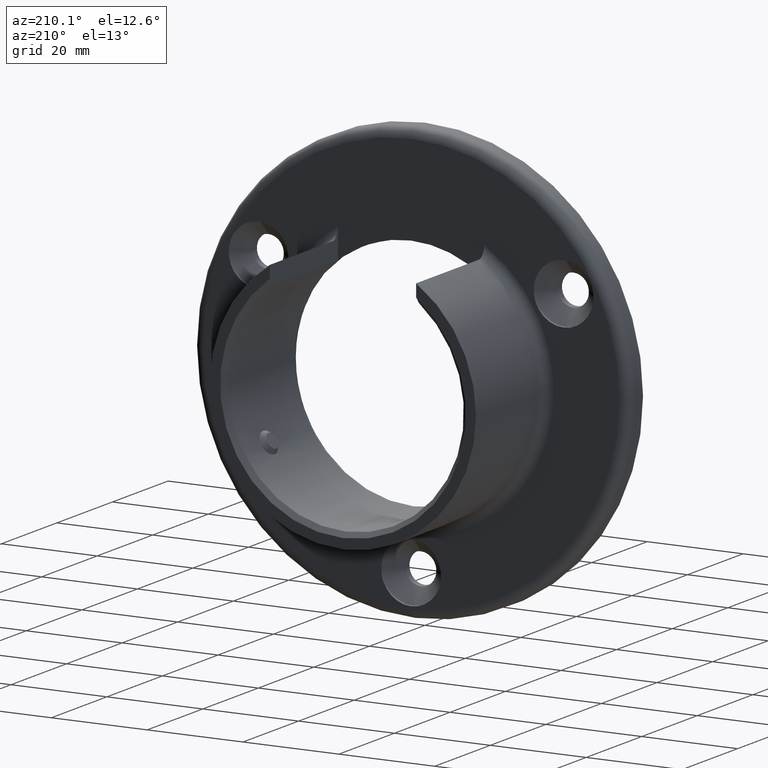
[diagram: clean part render]
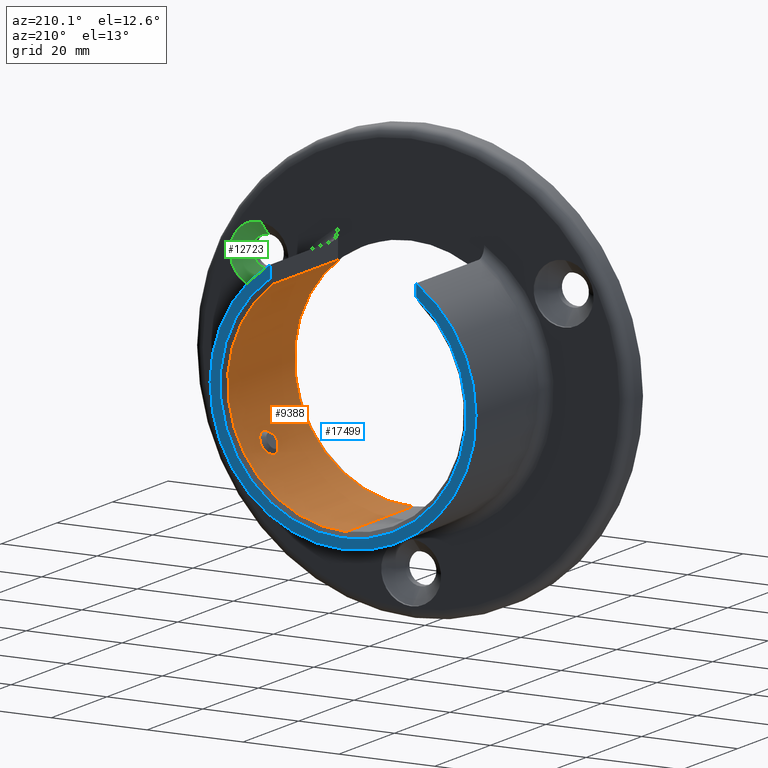
[diagram: same view with three faces highlighted in distinct colors, each labeled with its STEP entity id]
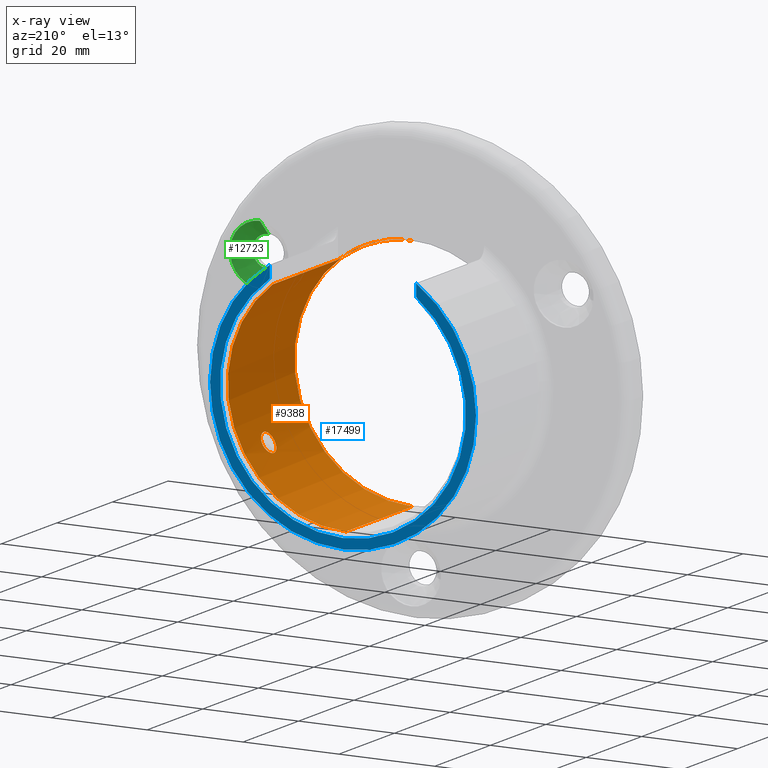
[diagram: x-ray of the same camera — body ghosted, the three highlighted faces saturated]
A machine part, auxiliary view with three faces highlighted in distinct colors.
The next image is the same camera in x-ray (body ghosted, the three faces saturated) — at least one of them is partly hidden behind the body in this view.
Their STEP definitions:

[orange] entity #9388 — the highlighted cylindrical surface (partial cylindrical patch) has radius 24.65 mm, axis along (-0, -1, -0).
#249 = CARTESIAN_POINT ( 'NONE',  ( 15.25000000000000000, 28.50000000000002132, 19.36646586241278811 ) ) ;
#305 = B_SPLINE_CURVE_WITH_KNOTS ( 'NONE', 3,
 ( #19015, #20566, #14099, #5966, #20361, #1100, #4426, #15858, #14024, #2940, #1236, #12524, #17261, #9369, #10988, #15717, #14171, #4494, #1311, #7595, #12598, #10707, #9086, #18878, #1027, #14241, #9220, #6189 ),
 .UNSPECIFIED., .F., .F.,
 ( 4, 2, 2, 2, 2, 2, 2, 2, 2, 2, 2, 2, 2, 4 ),
 ( 0.006568531889358348967, 0.007389407767020031437, 0.008210283644681713039, 0.008620721583512552105, 0.009031159522343391172, 0.009441597461174230238, 0.009852035400005069304, 0.01026247333883590837, 0.01067291127766674744, 0.01108334921649758650, 0.01149378715532842557, 0.01190422509415926464, 0.01231466303299010370, 0.01313553891065178357 ),
 .UNSPECIFIED. ) ;
#429 = EDGE_LOOP ( 'NONE', ( #9293, #4828, #2993, #1918, #11152, #5960 ) ) ;
#464 = CARTESIAN_POINT ( 'NONE',  ( 3.018754359898225504E-15, 4.500000000000000888, 24.64999999999999858 ) ) ;
#474 = VERTEX_POINT ( 'NONE', #2409 ) ;
#570 = CARTESIAN_POINT ( 'NONE',  ( 22.13340614786595495, 18.21893251904027622, -10.85083604497677001 ) ) ;
#645 = CARTESIAN_POINT ( 'NONE',  ( 20.51296449684338086, 18.11160774672137208, -13.66931605278213269 ) ) ;
#707 = LINE ( 'NONE', #16797, #14112 ) ;
#1027 = CARTESIAN_POINT ( 'NONE',  ( 20.34158313223149861, 20.43216388753052115, -13.92283256409887926 ) ) ;
#1100 = CARTESIAN_POINT ( 'NONE',  ( 22.00837622095577828, 21.08075349679692323, -11.10239910529575447 ) ) ;
#1236 = CARTESIAN_POINT ( 'NONE',  ( 21.61518600170494508, 21.53262555859764760, -11.85007396796444290 ) ) ;
#1311 = CARTESIAN_POINT ( 'NONE',  ( 20.80302953202311400, 21.32344101146760451, -13.22382369981001204 ) ) ;
#1439 = CARTESIAN_POINT ( 'NONE',  ( 0.000000000000000000, 4.500000000000000888, 0.000000000000000000 ) ) ;
#1474 = ORIENTED_EDGE ( 'NONE', *, *, #3500, .F. ) ;
#1635 = VERTEX_POINT ( 'NONE', #6670 ) ;
#1918 = ORIENTED_EDGE ( 'NONE', *, *, #5040, .T. ) ;
#2136 = CARTESIAN_POINT ( 'NONE',  ( 21.85479066950291838, 17.67796752368202107, -11.40191179354865270 ) ) ;
#2203 = CARTESIAN_POINT ( 'NONE',  ( 22.22862259660871587, 18.56911766311585055, -10.65427760651781952 ) ) ;
#2227 = EDGE_CURVE ( 'NONE', #474, #2477, #15534, .T. ) ;
#2273 = CARTESIAN_POINT ( 'NONE',  ( 21.67769443879006985, 17.50695895320578188, -11.73525681422987077 ) ) ;
#2409 = CARTESIAN_POINT ( 'NONE',  ( 20.21991713665093826, 19.50000000000000000, -14.09884573243390093 ) ) ;
#2477 = VERTEX_POINT ( 'NONE', #15254 ) ;
#2623 = DIRECTION ( 'NONE',  ( 0.000000000000000000, 0.000000000000000000, 1.000000000000000000 ) ) ;
#2856 = DIRECTION ( 'NONE',  ( -0.000000000000000000, -1.000000000000000000, -0.000000000000000000 ) ) ;
#2940 = CARTESIAN_POINT ( 'NONE',  ( 21.67901420820233938, 21.49209272442217866, -11.73281694519427987 ) ) ;
#2993 = ORIENTED_EDGE ( 'NONE', *, *, #9080, .T. ) ;
#3008 = CARTESIAN_POINT ( 'NONE',  ( 0.000000000000000000, 28.50000000000001776, 0.000000000000000000 ) ) ;
#3044 = DIRECTION ( 'NONE',  ( 0.000000000000000000, 0.000000000000000000, -1.000000000000000000 ) ) ;
#3115 = VERTEX_POINT ( 'NONE', #464 ) ;
#3500 = EDGE_CURVE ( 'NONE', #2477, #474, #305, .T. ) ;
#3694 = CARTESIAN_POINT ( 'NONE',  ( 21.61506682271525648, 17.46727435266398132, -11.85029680345877878 ) ) ;
#3766 = CARTESIAN_POINT ( 'NONE',  ( 21.21010183992854792, 17.40009892714541451, -12.56300912379390411 ) ) ;
#4307 = EDGE_CURVE ( 'NONE', #1635, #20028, #5138, .T. ) ;
#4426 = CARTESIAN_POINT ( 'NONE',  ( 21.95955195638258672, 21.16945329795520792, -11.19882234432368584 ) ) ;
#4494 = CARTESIAN_POINT ( 'NONE',  ( 20.86760422146044647, 21.38786518555536631, -13.12180643169930505 ) ) ;
#4508 = CYLINDRICAL_SURFACE ( 'NONE', #12979, 24.64999999999999858 ) ;
#4828 = ORIENTED_EDGE ( 'NONE', *, *, #13158, .T. ) ;
#5040 = EDGE_CURVE ( 'NONE', #12698, #1635, #14726, .T. ) ;
#5138 = LINE ( 'NONE', #15881, #12425 ) ;
#5370 = CARTESIAN_POINT ( 'NONE',  ( 20.28143401689244030, 18.82277780301813053, -14.01030804463471569 ) ) ;
#5460 = CARTESIAN_POINT ( 'NONE',  ( 21.06765711238190164, 17.45527740111259973, -12.80000981060015341 ) ) ;
#5529 = CARTESIAN_POINT ( 'NONE',  ( 21.48425335259662461, 17.41362232631799500, -12.08583906735283264 ) ) ;
#5960 = ORIENTED_EDGE ( 'NONE', *, *, #15719, .T. ) ;
#5966 = CARTESIAN_POINT ( 'NONE',  ( 22.20630086078287491, 20.55591280023837797, -10.70110809995931156 ) ) ;
#6189 = CARTESIAN_POINT ( 'NONE',  ( 20.21991713665093826, 19.50000000000000000, -14.09884573243390093 ) ) ;
#6215 = DIRECTION ( 'NONE',  ( -0.000000000000000000, -1.000000000000000000, -0.000000000000000000 ) ) ;
#6624 = CARTESIAN_POINT ( 'NONE',  ( 0.000000000000000000, 4.500000000000000888, -24.64999999999999858 ) ) ;
#6670 = CARTESIAN_POINT ( 'NONE',  ( 0.000000000000000000, 28.50000000000001776, -24.64999999999999858 ) ) ;
#6772 = EDGE_LOOP ( 'NONE', ( #13815, #1474 ) ) ;
#6878 = DIRECTION ( 'NONE',  ( -0.000000000000000000, 1.000000000000000000, -0.000000000000000000 ) ) ;
#6927 = AXIS2_PLACEMENT_3D ( 'NONE', #17018, #18644, #2623 ) ;
#6977 = CARTESIAN_POINT ( 'NONE',  ( 20.37789867389697562, 18.44786825748163395, -13.86973623558677104 ) ) ;
#7074 = CARTESIAN_POINT ( 'NONE',  ( 22.31407426790390147, 19.22366995173492299, -10.47403055838502794 ) ) ;
#7595 = CARTESIAN_POINT ( 'NONE',  ( 20.67956654524506632, 21.17130988912107625, -13.41607537451484511 ) ) ;
#8018 = DIRECTION ( 'NONE',  ( 0.000000000000000000, -1.000000000000000000, 0.000000000000000000 ) ) ;
#8106 = AXIS2_PLACEMENT_3D ( 'NONE', #3008, #18664, #14307 ) ;
#8698 = CARTESIAN_POINT ( 'NONE',  ( 22.31991713665094679, 19.36291245680589057, -10.46153903653928907 ) ) ;
#8854 = CARTESIAN_POINT ( 'NONE',  ( 3.018754359898225110E-15, 5.000000000000000888, 24.64999999999999503 ) ) ;
#9080 = EDGE_CURVE ( 'NONE', #18939, #12698, #707, .T. ) ;
#9086 = CARTESIAN_POINT ( 'NONE',  ( 20.46484218839484015, 20.78360855170165067, -13.74113026791213343 ) ) ;
#9220 = CARTESIAN_POINT ( 'NONE',  ( 20.21991713665094537, 19.77757476843959239, -14.09884573243390449 ) ) ;
#9293 = ORIENTED_EDGE ( 'NONE', *, *, #15772, .F. ) ;
#9369 = CARTESIAN_POINT ( 'NONE',  ( 21.27903636249266128, 21.60010863259131852, -12.44364639345839407 ) ) ;
#9388 = ADVANCED_FACE ( 'NONE', ( #12072, #18889 ), #4508, .F. ) ;
#9638 = CARTESIAN_POINT ( 'NONE',  ( 3.018754359898225504E-15, 5.000000000000000000, 24.64999999999999858 ) ) ;
#10161 = CARTESIAN_POINT ( 'NONE',  ( 20.21991713665093826, 19.50000000000000000, -14.09884573243390093 ) ) ;
#10319 = CARTESIAN_POINT ( 'NONE',  ( 20.46348655821620710, 18.21962344048476368, -13.74314576398233712 ) ) ;
#10707 = CARTESIAN_POINT ( 'NONE',  ( 20.51335410552706406, 20.88919125410771827, -13.66873177343665624 ) ) ;
#10988 = CARTESIAN_POINT ( 'NONE',  ( 21.20963398433370273, 21.58656786249065718, -12.56152648233364388 ) ) ;
#11152 = ORIENTED_EDGE ( 'NONE', *, *, #4307, .T. ) ;
#11371 = CARTESIAN_POINT ( 'NONE',  ( 0.000000000000000000, 5.000000000000000000, 0.000000000000000000 ) ) ;
#11869 = CARTESIAN_POINT ( 'NONE',  ( 22.00719563030491344, 17.91678819717421334, -11.10475081294173805 ) ) ;
#11936 = CARTESIAN_POINT ( 'NONE',  ( 21.41567066343079162, 17.39995074105626927, -12.20697872577965626 ) ) ;
#12072 = FACE_OUTER_BOUND ( 'NONE', #429, .T. ) ;
#12425 = VECTOR ( 'NONE', #6215, 1000.000000000000000 ) ;
#12524 = CARTESIAN_POINT ( 'NONE',  ( 21.48484579012615114, 21.58618562018502729, -12.08478052382533718 ) ) ;
#12598 = CARTESIAN_POINT ( 'NONE',  ( 20.62038264445520497, 21.08273272043192392, -13.50672960228164499 ) ) ;
#12698 = VERTEX_POINT ( 'NONE', #249 ) ;
#12979 = AXIS2_PLACEMENT_3D ( 'NONE', #11371, #16091, #3044 ) ;
#13158 = EDGE_CURVE ( 'NONE', #17465, #18939, #18575, .T. ) ;
#13360 = CARTESIAN_POINT ( 'NONE',  ( 22.27410988502726141, 18.82352602397247310, -10.55885044353509450 ) ) ;
#13399 = CARTESIAN_POINT ( 'NONE',  ( 20.21991713665094181, 19.36118038915865114, -14.09884573243390271 ) ) ;
#13563 = CARTESIAN_POINT ( 'NONE',  ( 21.79768277426660816, 17.61220771027227272, -11.51085202536802932 ) ) ;
#13815 = ORIENTED_EDGE ( 'NONE', *, *, #2227, .F. ) ;
#14024 = CARTESIAN_POINT ( 'NONE',  ( 21.79883715100291752, 21.38656602874010915, -11.50866410027384212 ) ) ;
#14099 = CARTESIAN_POINT ( 'NONE',  ( 22.29660817033180109, 20.05045571550364869, -10.51164956537813211 ) ) ;
#14112 = VECTOR ( 'NONE', #6878, 1000.000000000000000 ) ;
#14171 = CARTESIAN_POINT ( 'NONE',  ( 21.00203671826469076, 21.49314951443726329, -12.90554778609420516 ) ) ;
#14241 = CARTESIAN_POINT ( 'NONE',  ( 20.25210933246012956, 20.05334134766032150, -14.05295881014923509 ) ) ;
#14307 = DIRECTION ( 'NONE',  ( 0.000000000000000000, 0.000000000000000000, 1.000000000000000000 ) ) ;
#14726 = CIRCLE ( 'NONE', #8106, 24.64999999999999858 ) ;
#14932 = CARTESIAN_POINT ( 'NONE',  ( 22.31991713665094679, 19.50000000000000355, -10.46153903653928730 ) ) ;
#15041 = CARTESIAN_POINT ( 'NONE',  ( 20.22775040098064991, 19.22469344419998905, -14.08763043844692397 ) ) ;
#15067 = CARTESIAN_POINT ( 'NONE',  ( 20.67341977048848278, 17.82117154752544153, -13.42646156630977394 ) ) ;
#15068 = AXIS2_PLACEMENT_3D ( 'NONE', #1439, #8018, #20629 ) ;
#15136 = CARTESIAN_POINT ( 'NONE',  ( 22.20009201370539387, 18.44633511682691562, -10.71374001758355554 ) ) ;
#15254 = CARTESIAN_POINT ( 'NONE',  ( 22.31991713665094679, 19.50000000000000355, -10.46153903653928730 ) ) ;
#15534 = B_SPLINE_CURVE_WITH_KNOTS ( 'NONE', 3,
 ( #10161, #13399, #15041, #19880, #5370, #16632, #6977, #10319, #645, #15067, #19840, #5460, #3766, #11936, #5529, #3694, #2273, #13563, #2136, #16728, #11869, #18220, #570, #15136, #2203, #13360, #19904, #7074, #8698, #14932 ),
 .UNSPECIFIED., .F., .F.,
 ( 4, 2, 2, 2, 2, 2, 2, 2, 2, 2, 2, 2, 2, 2, 4 ),
 ( 3.469446951953613804E-18, 0.0004105332430848995210, 0.0008210664861697955725, 0.001231599729254691678, 0.001642132972339587675, 0.002463199458509384224, 0.003284265944679180555, 0.003694799187764076336, 0.004105332430848972550, 0.004515865673933868764, 0.004926398917018764978, 0.005336932160103660325, 0.005747465403188556539, 0.006157998646273452753, 0.006568531889358348967 ),
 .UNSPECIFIED. ) ;
#15717 = CARTESIAN_POINT ( 'NONE',  ( 21.07156024452329035, 21.53339744273441880, -12.79178917029193840 ) ) ;
#15719 = EDGE_CURVE ( 'NONE', #20028, #3115, #17718, .T. ) ;
#15759 = CARTESIAN_POINT ( 'NONE',  ( 15.25000000000000000, 5.000000000000000888, 19.36646586241278811 ) ) ;
#15772 = EDGE_CURVE ( 'NONE', #17465, #3115, #19221, .T. ) ;
#15858 = CARTESIAN_POINT ( 'NONE',  ( 21.85483673913577007, 21.32200853937143137, -11.40182683303474676 ) ) ;
#15881 = CARTESIAN_POINT ( 'NONE',  ( 0.000000000000000000, 5.000000000000000000, -24.64999999999999858 ) ) ;
#16091 = DIRECTION ( 'NONE',  ( -0.000000000000000000, -1.000000000000000000, -0.000000000000000000 ) ) ;
#16632 = CARTESIAN_POINT ( 'NONE',  ( 20.34136843017224550, 18.56847167351025263, -13.92314719002532541 ) ) ;
#16728 = CARTESIAN_POINT ( 'NONE',  ( 21.95920283929573813, 17.82999507104571535, -11.19950348981246968 ) ) ;
#16797 = CARTESIAN_POINT ( 'NONE',  ( 15.25000000000000000, -26.63121313886159314, 19.36646586241278811 ) ) ;
#17018 = CARTESIAN_POINT ( 'NONE',  ( 0.000000000000000000, 5.000000000000000888, 0.000000000000000000 ) ) ;
#17200 = VECTOR ( 'NONE', #2856, 1000.000000000000000 ) ;
#17261 = CARTESIAN_POINT ( 'NONE',  ( 21.41767117109146668, 21.59989006275890233, -12.20348662017181063 ) ) ;
#17465 = VERTEX_POINT ( 'NONE', #8854 ) ;
#17718 = CIRCLE ( 'NONE', #15068, 24.64999999999999858 ) ;
#18220 = CARTESIAN_POINT ( 'NONE',  ( 22.09500441125792136, 18.11283140243581258, -10.92899493066652816 ) ) ;
#18575 = CIRCLE ( 'NONE', #6927, 24.64999999999999503 ) ;
#18644 = DIRECTION ( 'NONE',  ( 0.000000000000000000, 1.000000000000000000, 0.000000000000000000 ) ) ;
#18664 = DIRECTION ( 'NONE',  ( 0.000000000000000000, 1.000000000000000000, 0.000000000000000000 ) ) ;
#18878 = CARTESIAN_POINT ( 'NONE',  ( 20.37861224256120707, 20.55440877027018232, -13.86869099457373267 ) ) ;
#18889 = FACE_BOUND ( 'NONE', #6772, .T. ) ;
#18939 = VERTEX_POINT ( 'NONE', #15759 ) ;
#19015 = CARTESIAN_POINT ( 'NONE',  ( 22.31991713665094679, 19.50000000000000355, -10.46153903653928730 ) ) ;
#19221 = LINE ( 'NONE', #9638, #17200 ) ;
#19840 = CARTESIAN_POINT ( 'NONE',  ( 20.80066910218234355, 17.66473845251893593, -13.22945925795429112 ) ) ;
#19880 = CARTESIAN_POINT ( 'NONE',  ( 20.25832283593280181, 18.95619021511917168, -14.04363106642126091 ) ) ;
#19904 = CARTESIAN_POINT ( 'NONE',  ( 22.29111404275122510, 18.95444850836133099, -10.52280672181018062 ) ) ;
#20028 = VERTEX_POINT ( 'NONE', #6624 ) ;
#20361 = CARTESIAN_POINT ( 'NONE',  ( 22.13828680825659134, 20.79017708333638126, -10.84233906041442985 ) ) ;
#20566 = CARTESIAN_POINT ( 'NONE',  ( 22.31991713665095389, 19.77411143733536392, -10.46153903653928907 ) ) ;
#20629 = DIRECTION ( 'NONE',  ( 0.000000000000000000, 0.000000000000000000, 1.000000000000000000 ) ) ;

[blue] entity #17499 — the highlighted planar face has unit normal (0, 1, 0).
#827 = CARTESIAN_POINT ( 'NONE',  ( 15.25000000000000000, 29.50000000000000355, 19.36646586241278811 ) ) ;
#844 = VERTEX_POINT ( 'NONE', #12079 ) ;
#891 = EDGE_CURVE ( 'NONE', #844, #3633, #1477, .T. ) ;
#960 = DIRECTION ( 'NONE',  ( -0.000000000000000000, -0.000000000000000000, -1.000000000000000000 ) ) ;
#1239 = EDGE_CURVE ( 'NONE', #10818, #7359, #11593, .T. ) ;
#1426 = LINE ( 'NONE', #1948, #18096 ) ;
#1477 = CIRCLE ( 'NONE', #13440, 27.75000000000000000 ) ;
#1815 = AXIS2_PLACEMENT_3D ( 'NONE', #18919, #12645, #14358 ) ;
#1948 = CARTESIAN_POINT ( 'NONE',  ( -15.25000000000000000, 29.50000000000000355, 19.36646586241278811 ) ) ;
#2052 = ORIENTED_EDGE ( 'NONE', *, *, #891, .T. ) ;
#2438 = AXIS2_PLACEMENT_3D ( 'NONE', #16276, #17910, #19791 ) ;
#3633 = VERTEX_POINT ( 'NONE', #14384 ) ;
#3931 = EDGE_LOOP ( 'NONE', ( #7411, #4816, #16973, #2052, #10461 ) ) ;
#4816 = ORIENTED_EDGE ( 'NONE', *, *, #1239, .T. ) ;
#5541 = LINE ( 'NONE', #827, #16387 ) ;
#7359 = VERTEX_POINT ( 'NONE', #17188 ) ;
#7411 = ORIENTED_EDGE ( 'NONE', *, *, #11680, .F. ) ;
#8044 = CIRCLE ( 'NONE', #2438, 27.75000000000000000 ) ;
#8308 = EDGE_CURVE ( 'NONE', #844, #7359, #5541, .T. ) ;
#8549 = VERTEX_POINT ( 'NONE', #9935 ) ;
#9917 = EDGE_CURVE ( 'NONE', #3633, #8549, #8044, .T. ) ;
#9935 = CARTESIAN_POINT ( 'NONE',  ( -15.25000000000000000, 29.50000000000000355, 23.18404623873926340 ) ) ;
#10461 = ORIENTED_EDGE ( 'NONE', *, *, #9917, .T. ) ;
#10502 = CARTESIAN_POINT ( 'NONE',  ( 0.000000000000000000, 29.50000000000000355, 0.000000000000000000 ) ) ;
#10818 = VERTEX_POINT ( 'NONE', #20818 ) ;
#11593 = CIRCLE ( 'NONE', #17900, 25.64999999999997726 ) ;
#11680 = EDGE_CURVE ( 'NONE', #10818, #8549, #1426, .T. ) ;
#12079 = CARTESIAN_POINT ( 'NONE',  ( 15.25000000000000000, 29.50000000000000355, 23.18404623873925985 ) ) ;
#12645 = DIRECTION ( 'NONE',  ( 0.000000000000000000, 1.000000000000000000, 0.000000000000000000 ) ) ;
#13440 = AXIS2_PLACEMENT_3D ( 'NONE', #15614, #20253, #17764 ) ;
#13750 = DIRECTION ( 'NONE',  ( -0.000000000000000000, -1.000000000000000000, -0.000000000000000000 ) ) ;
#14358 = DIRECTION ( 'NONE',  ( 0.000000000000000000, -0.000000000000000000, 1.000000000000000000 ) ) ;
#14384 = CARTESIAN_POINT ( 'NONE',  ( 0.000000000000000000, 29.50000000000000355, -27.75000000000000000 ) ) ;
#14884 = DIRECTION ( 'NONE',  ( 0.000000000000000000, 0.000000000000000000, 1.000000000000000000 ) ) ;
#15614 = CARTESIAN_POINT ( 'NONE',  ( 0.000000000000000000, 29.50000000000000355, 0.000000000000000000 ) ) ;
#16276 = CARTESIAN_POINT ( 'NONE',  ( 0.000000000000000000, 29.50000000000000355, 0.000000000000000000 ) ) ;
#16387 = VECTOR ( 'NONE', #960, 1000.000000000000000 ) ;
#16909 = FACE_OUTER_BOUND ( 'NONE', #3931, .T. ) ;
#16973 = ORIENTED_EDGE ( 'NONE', *, *, #8308, .F. ) ;
#16989 = DIRECTION ( 'NONE',  ( 0.000000000000000000, 0.000000000000000000, 1.000000000000000000 ) ) ;
#17188 = CARTESIAN_POINT ( 'NONE',  ( 15.25000000000000000, 29.50000000000000355, 20.62425756239479568 ) ) ;
#17499 = ADVANCED_FACE ( 'NONE', ( #16909 ), #20543, .T. ) ;
#17764 = DIRECTION ( 'NONE',  ( 0.000000000000000000, 0.000000000000000000, 1.000000000000000000 ) ) ;
#17900 = AXIS2_PLACEMENT_3D ( 'NONE', #10502, #13750, #16989 ) ;
#17910 = DIRECTION ( 'NONE',  ( 0.000000000000000000, 1.000000000000000000, 0.000000000000000000 ) ) ;
#18096 = VECTOR ( 'NONE', #14884, 1000.000000000000000 ) ;
#18919 = CARTESIAN_POINT ( 'NONE',  ( 0.000000000000000000, 29.50000000000000355, 0.000000000000000000 ) ) ;
#19791 = DIRECTION ( 'NONE',  ( 0.000000000000000000, 0.000000000000000000, 1.000000000000000000 ) ) ;
#20253 = DIRECTION ( 'NONE',  ( 0.000000000000000000, 1.000000000000000000, 0.000000000000000000 ) ) ;
#20543 = PLANE ( 'NONE',  #1815 ) ;
#20818 = CARTESIAN_POINT ( 'NONE',  ( -15.25000000000000000, 29.50000000000000355, 20.62425756239479568 ) ) ;

[green] entity #12723 — the highlighted conical surface has half-angle 45 deg.
#512 = LINE ( 'NONE', #14330, #11387 ) ;
#720 = DIRECTION ( 'NONE',  ( -0.000000000000000000, 1.000000000000000000, -0.000000000000000000 ) ) ;
#852 = EDGE_CURVE ( 'NONE', #11307, #5499, #11613, .T. ) ;
#1107 = CARTESIAN_POINT ( 'NONE',  ( 31.82643358907828812, 1.500000000000000444, 21.62499999999970868 ) ) ;
#1809 = ORIENTED_EDGE ( 'NONE', *, *, #18020, .T. ) ;
#2297 = VERTEX_POINT ( 'NONE', #1107 ) ;
#3840 = DIRECTION ( 'NONE',  ( -0.000000000000000000, 1.000000000000000000, -0.000000000000000000 ) ) ;
#4941 = ORIENTED_EDGE ( 'NONE', *, *, #6443, .F. ) ;
#5499 = VERTEX_POINT ( 'NONE', #12966 ) ;
#6443 = EDGE_CURVE ( 'NONE', #18226, #5499, #512, .T. ) ;
#7183 = CARTESIAN_POINT ( 'NONE',  ( 31.82643358907828812, 4.500000000000000000, 24.62499999999970157 ) ) ;
#8569 = DIRECTION ( 'NONE',  ( 0.000000000000000000, 0.000000000000000000, 1.000000000000000000 ) ) ;
#8581 = AXIS2_PLACEMENT_3D ( 'NONE', #19915, #720, #8569 ) ;
#8894 = ORIENTED_EDGE ( 'NONE', *, *, #852, .T. ) ;
#9334 = LINE ( 'NONE', #11083, #12356 ) ;
#10255 = DIRECTION ( 'NONE',  ( 0.000000000000000000, 0.000000000000000000, 1.000000000000000000 ) ) ;
#11026 = EDGE_LOOP ( 'NONE', ( #4941, #15320, #1809, #8894 ) ) ;
#11083 = CARTESIAN_POINT ( 'NONE',  ( 31.82643358907828812, 4.500000000000000000, 24.62499999999970157 ) ) ;
#11307 = VERTEX_POINT ( 'NONE', #7183 ) ;
#11387 = VECTOR ( 'NONE', #12687, 1000.000000000000000 ) ;
#11613 = CIRCLE ( 'NONE', #16409, 6.249999999999998224 ) ;
#12356 = VECTOR ( 'NONE', #19181, 1000.000000000000000 ) ;
#12687 = DIRECTION ( 'NONE',  ( 8.659560562354927928E-17, 0.7071067811865479058, -0.7071067811865471286 ) ) ;
#12723 = ADVANCED_FACE ( 'NONE', ( #12786 ), #18596, .F. ) ;
#12724 = AXIS2_PLACEMENT_3D ( 'NONE', #17536, #14076, #16791 ) ;
#12786 = FACE_OUTER_BOUND ( 'NONE', #11026, .T. ) ;
#12849 = CIRCLE ( 'NONE', #8581, 3.250000000000002665 ) ;
#12966 = CARTESIAN_POINT ( 'NONE',  ( 31.82643358907828812, 4.500000000000000000, 12.12499999999970512 ) ) ;
#14076 = DIRECTION ( 'NONE',  ( -0.000000000000000000, 1.000000000000000000, -0.000000000000000000 ) ) ;
#14330 = CARTESIAN_POINT ( 'NONE',  ( 31.82643358907828812, 4.500000000000000000, 12.12499999999970512 ) ) ;
#14898 = CARTESIAN_POINT ( 'NONE',  ( 31.82643358907828812, 1.500000000000000444, 15.12499999999970157 ) ) ;
#15320 = ORIENTED_EDGE ( 'NONE', *, *, #18595, .F. ) ;
#16409 = AXIS2_PLACEMENT_3D ( 'NONE', #18433, #3840, #10255 ) ;
#16791 = DIRECTION ( 'NONE',  ( 0.000000000000000000, 0.000000000000000000, 1.000000000000000000 ) ) ;
#17536 = CARTESIAN_POINT ( 'NONE',  ( 31.82643358907828812, 4.500000000000000000, 18.37499999999970512 ) ) ;
#18020 = EDGE_CURVE ( 'NONE', #2297, #11307, #9334, .T. ) ;
#18226 = VERTEX_POINT ( 'NONE', #14898 ) ;
#18433 = CARTESIAN_POINT ( 'NONE',  ( 31.82643358907828812, 4.500000000000000000, 18.37499999999970512 ) ) ;
#18595 = EDGE_CURVE ( 'NONE', #2297, #18226, #12849, .T. ) ;
#18596 = CONICAL_SURFACE ( 'NONE', #12724, 6.249999999999998224, 0.7853981633974477239 ) ;
#19181 = DIRECTION ( 'NONE',  ( 0.000000000000000000, 0.7071067811865479058, 0.7071067811865471286 ) ) ;
#19915 = CARTESIAN_POINT ( 'NONE',  ( 31.82643358907828812, 1.500000000000000444, 18.37499999999970512 ) ) ;